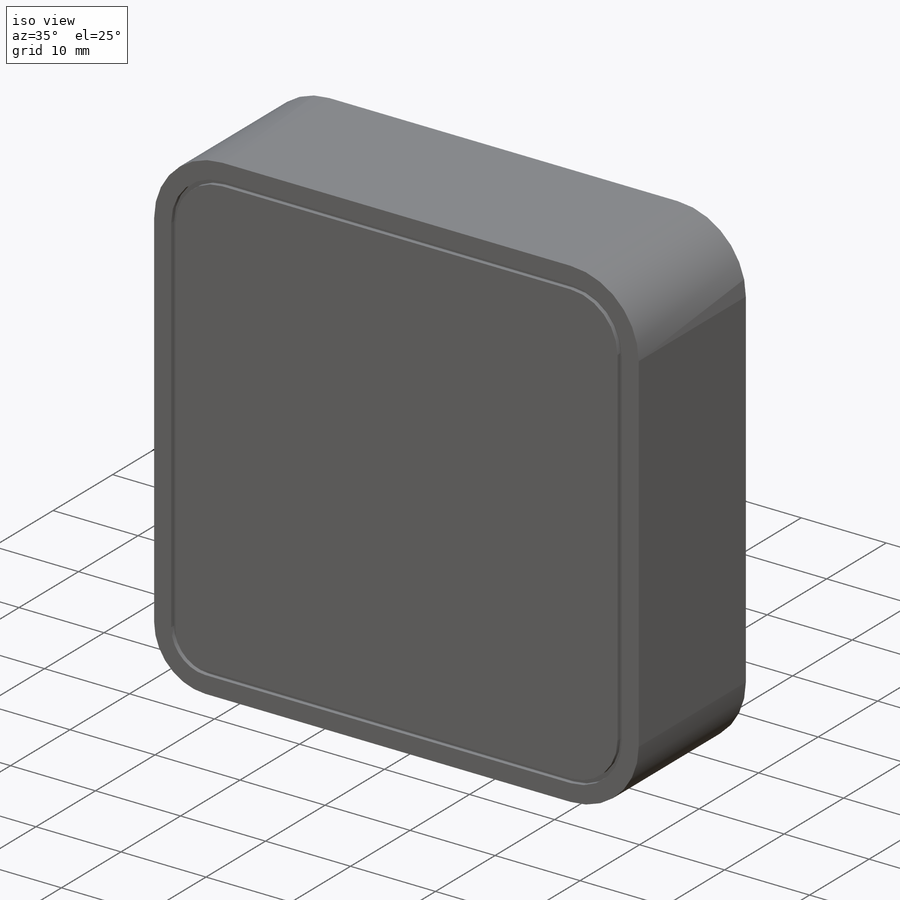
[diagram: iso view]
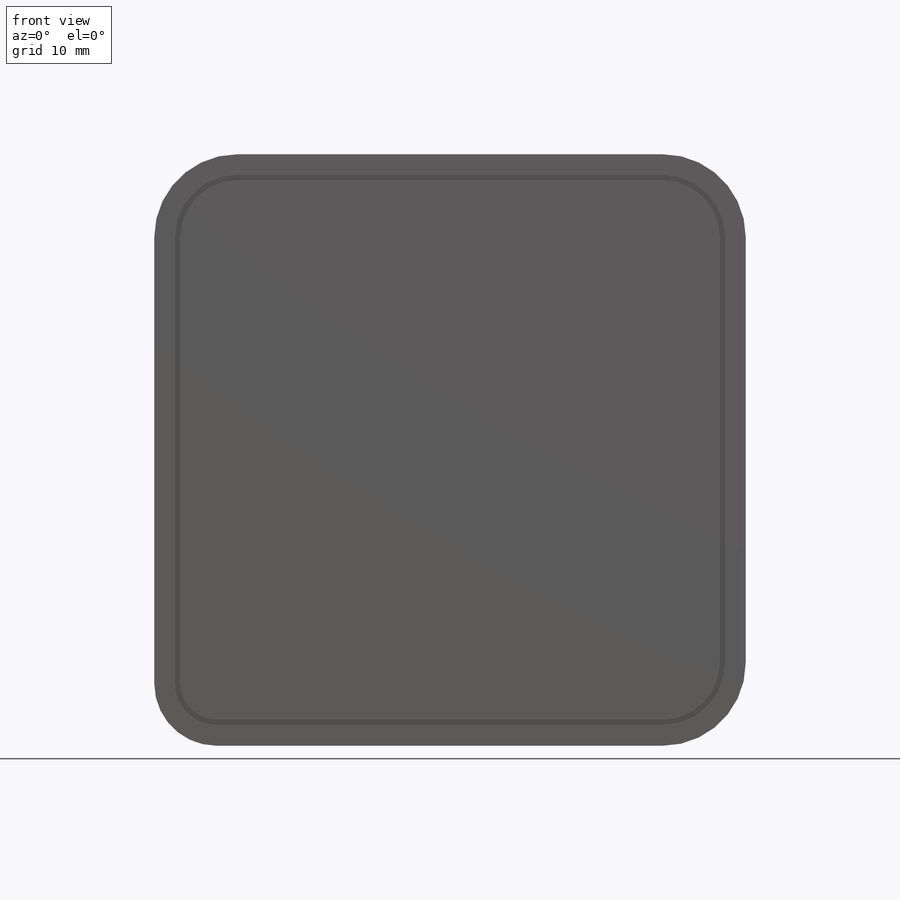
[diagram: front view]
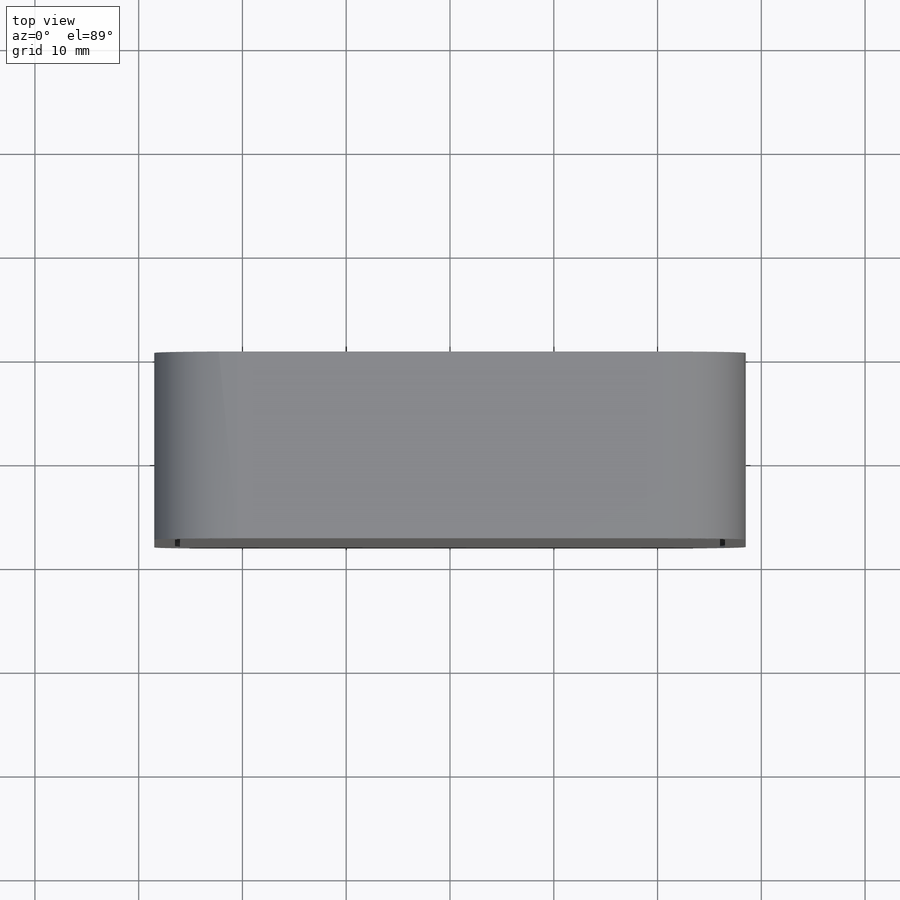
[diagram: top view]
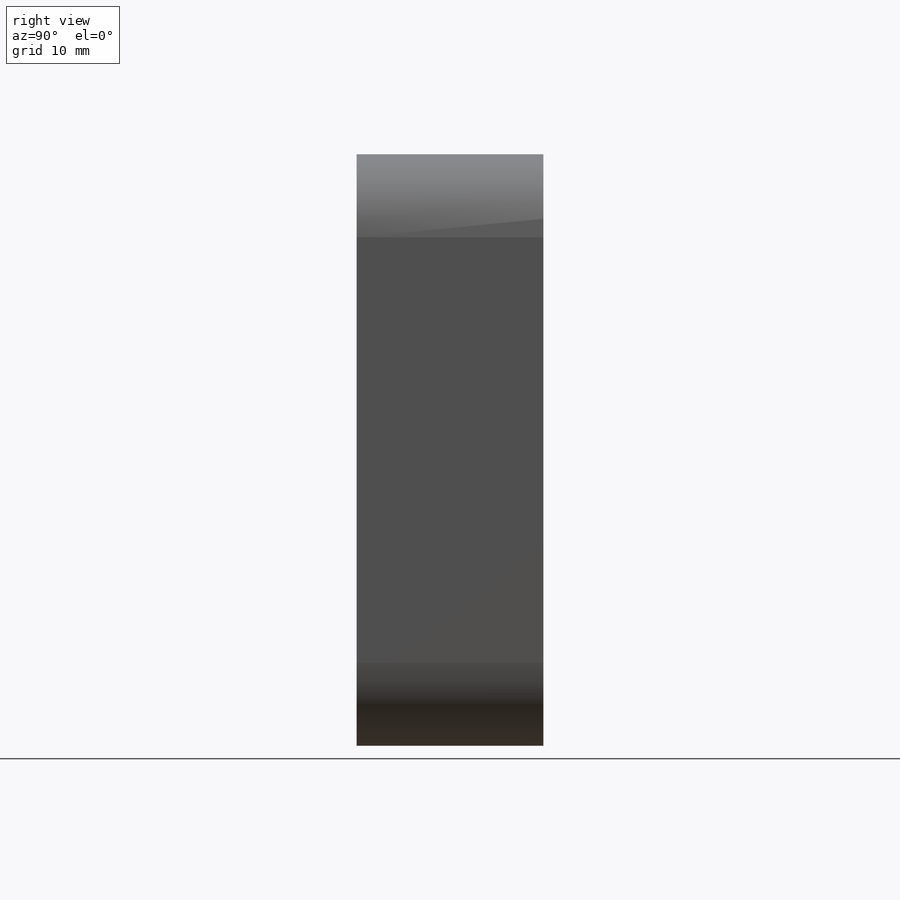
[diagram: right view]
SOLIDWORKS PART (.sldprt)
format: sldprt  version: not decoded by parser v0  size: 210,944 bytes
history: native  units: mm
features: plane x3, sketch x3, cut_extrude x2, material x1, extrude x1 (+13 scaffold rows collapsed)
feature tree (23):
  scaffold x13  (default folders/planes/origin — collapsed)
  material  "Material <sin especificar>"
  plane  "Alzado"
  plane  "Planta"
  plane  "Vista lateral"
  sketch  "Croquis1"  dims[c1.D2=8.0mm c1.D4=6.0mm c1.D1=57.0mm c1.D3=57.0mm c2.D2=74.0mm]
  extrude  "Saliente-Extruir1"  Depth=18mm
  sketch  "Croquis2"  dims[D1=0.0mm D2=2.0mm D3=0.5mm]
  cut_extrude  "Cortar-Extruir1"  Depth=0.5mm
  sketch  "Croquis3"  dims[c1.D10=2.5mm c1.D1=3.0mm c1.D2=3.0mm c1.D3=12.0mm c1.D4=15.0mm c1.D5=3.3mm c1.D6=1.7mm c1.D7=8.4mm c1.D8=9.0mm c1.D9=1.6mm c2.D9=135.0deg c3.D9=1.6mm c4.D9=135.0deg c5.D9=5.0mm c5.D11=6.5mm]
  cut_extrude  "Cortar-Extruir2"  Depth=0.5mm
decode coverage: 6 of 6 modeling features carry decoded parameters
note: suppression state not decoded; provenance and decode notes live in map.json
